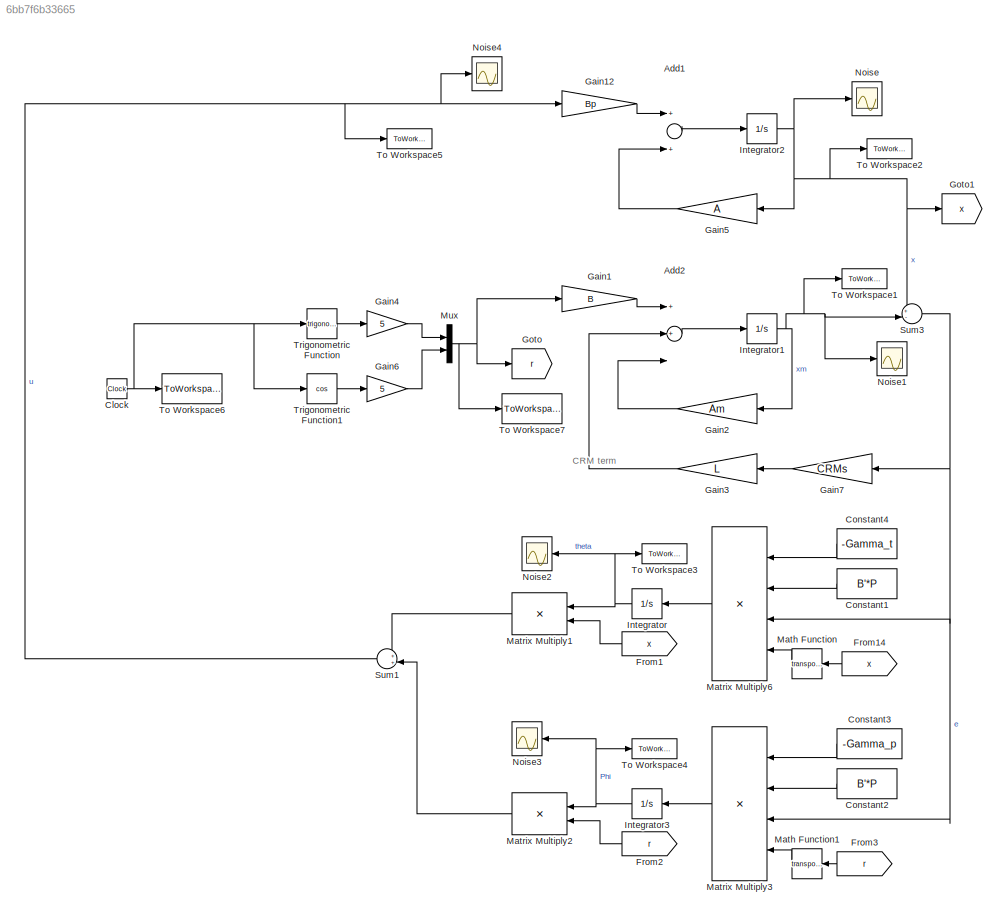
MODEL slx_6bb7f6b33665
KIND model
BLOCK [Sum] Add1
  InputSameDT = off
  Inputs = 2
  OutDataTypeStr = Inherit: Inherit via internal rule
  Ports = [2, 1]
  SaturateOnIntegerOverflow = off
BLOCK [Sum] Add2
  InputSameDT = off
  Inputs = 3
  OutDataTypeStr = Inherit: Inherit via internal rule
  Ports = [3, 1]
  SaturateOnIntegerOverflow = off
BLOCK [Clock] Clock
BLOCK [Constant] Constant1
  Value = B'*P
  VectorParams1D = off
BLOCK [Constant] Constant2
  Value = B'*P
  VectorParams1D = off
BLOCK [Constant] Constant3
  Value = -Gamma_p
  VectorParams1D = off
BLOCK [Constant] Constant4
  Value = -Gamma_t
  VectorParams1D = off
BLOCK [From] From1
  GotoTag = x
BLOCK [From] From14
  GotoTag = x
BLOCK [From] From2
  GotoTag = r
BLOCK [From] From3
  GotoTag = r
BLOCK [Gain] Gain1
  Gain = B
  Multiplication = Matrix(K*u)
  OutDataTypeStr = Inherit: Inherit via internal rule
  ParamDataTypeStr = Inherit: Inherit via internal rule
  SaturateOnIntegerOverflow = off
BLOCK [Gain] Gain12
  Gain = Bp
  Multiplication = Matrix(K*u)
  OutDataTypeStr = Inherit: Inherit via internal rule
  ParamDataTypeStr = Inherit: Inherit via internal rule
  SaturateOnIntegerOverflow = off
BLOCK [Gain] Gain2
  Gain = Am
  Multiplication = Matrix(K*u)
  OutDataTypeStr = Inherit: Inherit via internal rule
  ParamDataTypeStr = Inherit: Inherit via internal rule
  SaturateOnIntegerOverflow = off
BLOCK [Gain] Gain3
  Gain = L
  Multiplication = Matrix(K*u)
  OutDataTypeStr = Inherit: Inherit via internal rule
  ParamDataTypeStr = Inherit: Inherit via internal rule
  SaturateOnIntegerOverflow = off
BLOCK [Gain] Gain4
  Gain = 5
  OutDataTypeStr = Inherit: Inherit via internal rule
  ParamDataTypeStr = Inherit: Inherit via internal rule
  SaturateOnIntegerOverflow = off
BLOCK [Gain] Gain5
  Gain = A
  Multiplication = Matrix(K*u)
  OutDataTypeStr = Inherit: Inherit via internal rule
  ParamDataTypeStr = Inherit: Inherit via internal rule
  SaturateOnIntegerOverflow = off
BLOCK [Gain] Gain6
  Gain = 5
  OutDataTypeStr = Inherit: Inherit via internal rule
  ParamDataTypeStr = Inherit: Inherit via internal rule
  SaturateOnIntegerOverflow = off
BLOCK [Gain] Gain7
  Gain = CRMs
  OutDataTypeStr = Inherit: Inherit via internal rule
  ParamDataTypeStr = Inherit: Inherit via internal rule
  SaturateOnIntegerOverflow = off
BLOCK [Goto] Goto
  GotoTag = r
BLOCK [Goto] Goto1
  GotoTag = x
BLOCK [Integrator] Integrator
  InitialCondition = theta_0
  Ports = [1, 1]
BLOCK [Integrator] Integrator1
  InitialCondition = xm0
  Ports = [1, 1]
BLOCK [Integrator] Integrator2
  InitialCondition = x0
  Ports = [1, 1]
BLOCK [Integrator] Integrator3
  InitialCondition = phi_0
  Ports = [1, 1]
BLOCK [Math] Math Function
  Operator = transpose
  Ports = [1, 1]
BLOCK [Math] Math Function1
  Operator = transpose
  Ports = [1, 1]
BLOCK [Product] Matrix Multiply1
  InputSameDT = off
  Multiplication = Matrix(*)
  OutDataTypeStr = Inherit: Inherit via internal rule
  Ports = [2, 1]
  RndMeth = Floor
  SaturateOnIntegerOverflow = off
BLOCK [Product] Matrix Multiply2
  InputSameDT = off
  Multiplication = Matrix(*)
  OutDataTypeStr = Inherit: Inherit via internal rule
  Ports = [2, 1]
  RndMeth = Floor
  SaturateOnIntegerOverflow = off
BLOCK [Product] Matrix Multiply3
  InputSameDT = off
  Inputs = 4
  Multiplication = Matrix(*)
  OutDataTypeStr = Inherit: Inherit via internal rule
  Ports = [4, 1]
  RndMeth = Floor
  SaturateOnIntegerOverflow = off
BLOCK [Product] Matrix Multiply6
  InputSameDT = off
  Inputs = 4
  Multiplication = Matrix(*)
  OutDataTypeStr = Inherit: Inherit via internal rule
  Ports = [4, 1]
  RndMeth = Floor
  SaturateOnIntegerOverflow = off
BLOCK [Mux] Mux
  DisplayOption = bar
  Inputs = 2
  Ports = [2, 1]
BLOCK [Scope] Noise
  Decimation = data_deci
  Floating = off
  NumInputPorts = 1
  Ports = [1]
  SampleTime = 0
  SaveName = Theta
  ShowLegends = on
  TimeRange = 20
  ZoomMode = yonly
BLOCK [Scope] Noise1
  Decimation = data_deci
  Floating = off
  LegendLocations = 0.91922     0.87782    0.058394    0.071462
  NumInputPorts = 1
  Ports = [1]
  SampleTime = 0
  SaveName = Theta1
  ShowLegends = on
  TimeRange = 20
  ZoomMode = yonly
BLOCK [Scope] Noise2
  Decimation = data_deci
  Floating = off
  NumInputPorts = 1
  Ports = [1]
  SampleTime = 0
  SaveName = Theta2
  ShowLegends = on
  TimeRange = 20
  ZoomMode = yonly
BLOCK [Scope] Noise3
  Decimation = data_deci
  Floating = off
  NumInputPorts = 1
  Ports = [1]
  SampleTime = 0
  SaveName = Theta3
  ShowLegends = on
  TimeRange = 20
  ZoomMode = yonly
BLOCK [Scope] Noise4
  Decimation = data_deci
  Floating = off
  NumInputPorts = 1
  Ports = [1]
  SampleTime = 0
  SaveName = Theta4
  ShowLegends = on
  TimeRange = 20
  ZoomMode = yonly
BLOCK [Sum] Sum1
  IconShape = round
  InputSameDT = off
  Inputs = ++|
  OutDataTypeStr = Inherit: Inherit via internal rule
  Ports = [2, 1]
  SaturateOnIntegerOverflow = off
BLOCK [Sum] Sum3
  IconShape = round
  InputSameDT = off
  Inputs = +-|
  OutDataTypeStr = Inherit: Inherit via internal rule
  Ports = [2, 1]
  SaturateOnIntegerOverflow = off
BLOCK [ToWorkspace] To Workspace1
  Decimation = data_deci
  MaxDataPoints = inf
  Ports = [1]
  SampleTime = -1
  VariableName = xm
BLOCK [ToWorkspace] To Workspace2
  Decimation = data_deci
  MaxDataPoints = inf
  Ports = [1]
  SampleTime = -1
  VariableName = x
BLOCK [ToWorkspace] To Workspace3
  Decimation = data_deci
  MaxDataPoints = inf
  Ports = [1]
  SampleTime = -1
  VariableName = theta
BLOCK [ToWorkspace] To Workspace4
  Decimation = data_deci
  MaxDataPoints = inf
  Ports = [1]
  SampleTime = -1
  VariableName = phi
BLOCK [ToWorkspace] To Workspace5
  Decimation = data_deci
  MaxDataPoints = inf
  Ports = [1]
  SampleTime = -1
  VariableName = u
BLOCK [ToWorkspace] To Workspace6
  Decimation = data_deci
  MaxDataPoints = inf
  Ports = [1]
  SampleTime = -1
  VariableName = ts
BLOCK [ToWorkspace] To Workspace7
  Decimation = data_deci
  MaxDataPoints = inf
  Ports = [1]
  SampleTime = -1
  VariableName = r
BLOCK [Trigonometry] Trigonometric Function
  Ports = [1, 1]
BLOCK [Trigonometry] Trigonometric Function1
  Operator = cos
  Ports = [1, 1]
ANNOTATION (root): CRM term
LINE Add1:1 -> Integrator2:1
LINE Add2:1 -> Integrator1:1
NET Clock:1 -> To Workspace6:1, Trigonometric Function1:1, Trigonometric Function:1
LINE Constant1:1 -> Matrix Multiply6:2
LINE Constant2:1 -> Matrix Multiply3:2
LINE Constant3:1 -> Matrix Multiply3:1
LINE Constant4:1 -> Matrix Multiply6:1
LINE From14:1 -> Math Function:1
LINE From1:1 -> Matrix Multiply1:2
LINE From2:1 -> Matrix Multiply2:2
LINE From3:1 -> Math Function1:1
LINE Gain12:1 -> Add1:1
LINE Gain1:1 -> Add2:1
LINE Gain2:1 -> Add2:3
LINE Gain3:1 -> Add2:2
LINE Gain4:1 -> Mux:1
LINE Gain5:1 -> Add1:2
LINE Gain6:1 -> Mux:2
LINE Gain7:1 -> Gain3:1
NET Integrator1:1 -> Gain2:1, Noise1:1, Sum3:2, To Workspace1:1
NET Integrator2:1 -> Gain5:1, Goto1:1, Noise:1, Sum3:1, To Workspace2:1
NET Integrator3:1 -> Matrix Multiply2:1, Noise3:1, To Workspace4:1
NET Integrator:1 -> Matrix Multiply1:1, Noise2:1, To Workspace3:1
LINE Math Function1:1 -> Matrix Multiply3:4
LINE Math Function:1 -> Matrix Multiply6:4
LINE Matrix Multiply1:1 -> Sum1:1
LINE Matrix Multiply2:1 -> Sum1:2
LINE Matrix Multiply3:1 -> Integrator3:1
LINE Matrix Multiply6:1 -> Integrator:1
NET Mux:1 -> Gain1:1, Goto:1, To Workspace7:1
NET Sum1:1 -> Gain12:1, Noise4:1, To Workspace5:1
NET Sum3:1 -> Gain7:1, Matrix Multiply3:3, Matrix Multiply6:3
LINE Trigonometric Function1:1 -> Gain6:1
LINE Trigonometric Function:1 -> Gain4:1
note: NET lines group one-source signal fan-out (src -> all destinations, sorted); 1:1 wires keep LINE
